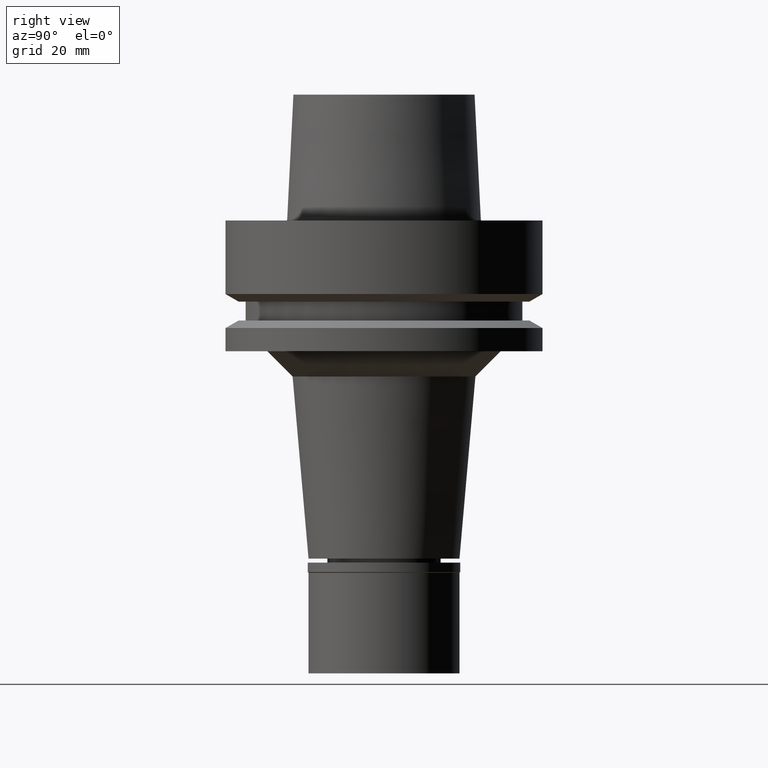
[diagram: clean part render]
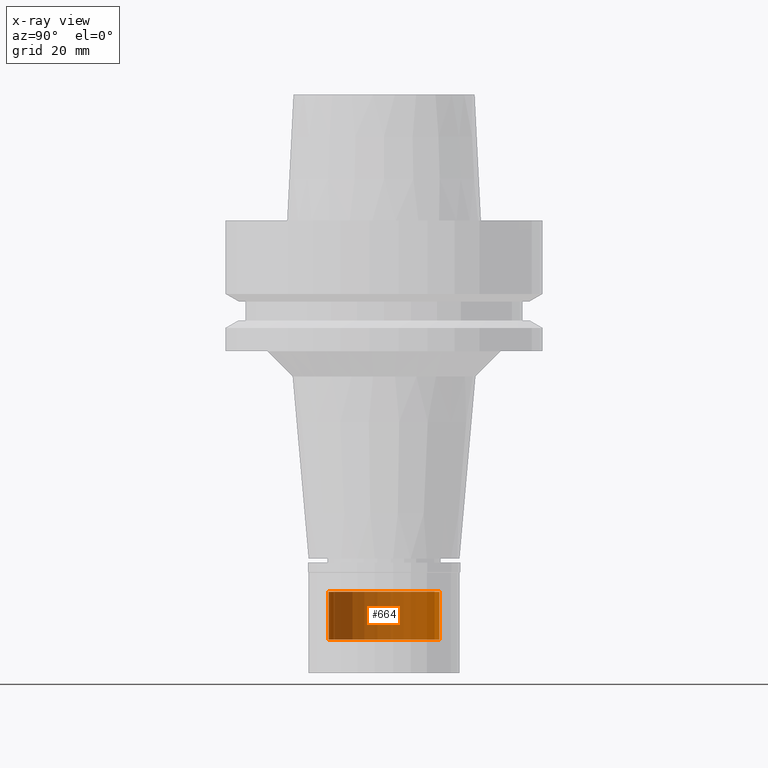
[diagram: x-ray — body ghosted, one internal face saturated and labeled with its STEP entity id]
A machine part, right view, then the same camera in x-ray: the body is ghosted and one INTERNAL B-rep face — a face not visible from any outside direction — is saturated and labeled: STEP entity #664.
In plain terms, the highlighted cylindrical surface (partial cylindrical patch) has radius 11 mm, axis along (0, 0, 1).
Its self-contained STEP definition (entity closure, byte-faithful):
#26 = DIRECTION ( 'NONE',  ( 0.0000000000000000000, 0.0000000000000000000, 1.000000000000000000 ) ) ;
#28 = LINE ( 'NONE', #218, #1492 ) ;
#83 = AXIS2_PLACEMENT_3D ( 'NONE', #1627, #2537, #1231 ) ;
#218 = CARTESIAN_POINT ( 'NONE',  ( 0.0000000000000000000, 11.00000000000000000, -73.80000000000001137 ) ) ;
#419 = EDGE_CURVE ( 'NONE', #1753, #2486, #2389, .T. ) ;
#467 = DIRECTION ( 'NONE',  ( 0.0000000000000000000, 0.0000000000000000000, -1.000000000000000000 ) ) ;
#564 = EDGE_LOOP ( 'NONE', ( #614, #2226, #1711, #1430 ) ) ;
#614 = ORIENTED_EDGE ( 'NONE', *, *, #1908, .T. ) ;
#648 = CARTESIAN_POINT ( 'NONE',  ( 0.0000000000000000000, -11.00000000000000000, -83.29999999999999716 ) ) ;
#664 = ADVANCED_FACE ( 'NONE', ( #1155 ), #2802, .T. ) ;
#684 = CARTESIAN_POINT ( 'NONE',  ( 0.0000000000000000000, 11.00000000000000000, -73.80000000000001137 ) ) ;
#854 = DIRECTION ( 'NONE',  ( 0.0000000000000000000, 0.0000000000000000000, 1.000000000000000000 ) ) ;
#904 = CARTESIAN_POINT ( 'NONE',  ( 0.0000000000000000000, -11.00000000000000000, -73.80000000000001137 ) ) ;
#1062 = CARTESIAN_POINT ( 'NONE',  ( 0.0000000000000000000, 0.0000000000000000000, -88.71500000000000341 ) ) ;
#1075 = CARTESIAN_POINT ( 'NONE',  ( 0.0000000000000000000, -11.00000000000000000, -73.80000000000001137 ) ) ;
#1155 = FACE_OUTER_BOUND ( 'NONE', #564, .T. ) ;
#1231 = DIRECTION ( 'NONE',  ( 0.0000000000000000000, -1.000000000000000000, 0.0000000000000000000 ) ) ;
#1430 = ORIENTED_EDGE ( 'NONE', *, *, #2552, .T. ) ;
#1492 = VECTOR ( 'NONE', #467, 1000.000000000000000 ) ;
#1549 = AXIS2_PLACEMENT_3D ( 'NONE', #1062, #854, #1750 ) ;
#1627 = CARTESIAN_POINT ( 'NONE',  ( 0.0000000000000000000, 0.0000000000000000000, -73.80000000000001137 ) ) ;
#1711 = ORIENTED_EDGE ( 'NONE', *, *, #2812, .T. ) ;
#1729 = VERTEX_POINT ( 'NONE', #2848 ) ;
#1750 = DIRECTION ( 'NONE',  ( 0.0000000000000000000, 1.000000000000000000, 0.0000000000000000000 ) ) ;
#1753 = VERTEX_POINT ( 'NONE', #1075 ) ;
#1796 = DIRECTION ( 'NONE',  ( 0.0000000000000000000, 1.000000000000000000, 0.0000000000000000000 ) ) ;
#1817 = CIRCLE ( 'NONE', #83, 11.00000000000000000 ) ;
#1898 = CIRCLE ( 'NONE', #2048, 11.00000000000000000 ) ;
#1908 = EDGE_CURVE ( 'NONE', #1729, #2486, #1898, .T. ) ;
#1927 = VERTEX_POINT ( 'NONE', #684 ) ;
#1975 = CARTESIAN_POINT ( 'NONE',  ( 0.0000000000000000000, 0.0000000000000000000, -83.29999999999999716 ) ) ;
#2048 = AXIS2_PLACEMENT_3D ( 'NONE', #1975, #26, #1796 ) ;
#2226 = ORIENTED_EDGE ( 'NONE', *, *, #419, .F. ) ;
#2389 = LINE ( 'NONE', #904, #2464 ) ;
#2464 = VECTOR ( 'NONE', #2839, 1000.000000000000000 ) ;
#2486 = VERTEX_POINT ( 'NONE', #648 ) ;
#2537 = DIRECTION ( 'NONE',  ( 0.0000000000000000000, 0.0000000000000000000, -1.000000000000000000 ) ) ;
#2552 = EDGE_CURVE ( 'NONE', #1927, #1729, #28, .T. ) ;
#2802 = CYLINDRICAL_SURFACE ( 'NONE', #1549, 11.00000000000000000 ) ;
#2812 = EDGE_CURVE ( 'NONE', #1753, #1927, #1817, .T. ) ;
#2839 = DIRECTION ( 'NONE',  ( 0.0000000000000000000, 0.0000000000000000000, -1.000000000000000000 ) ) ;
#2848 = CARTESIAN_POINT ( 'NONE',  ( 0.0000000000000000000, 11.00000000000000000, -83.29999999999999716 ) ) ;